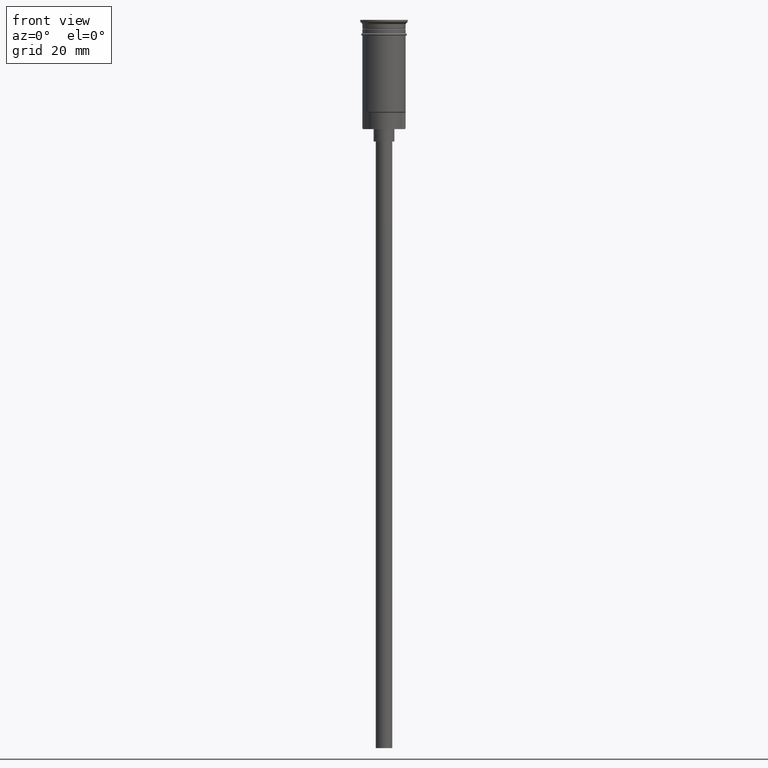
[diagram: clean part render]
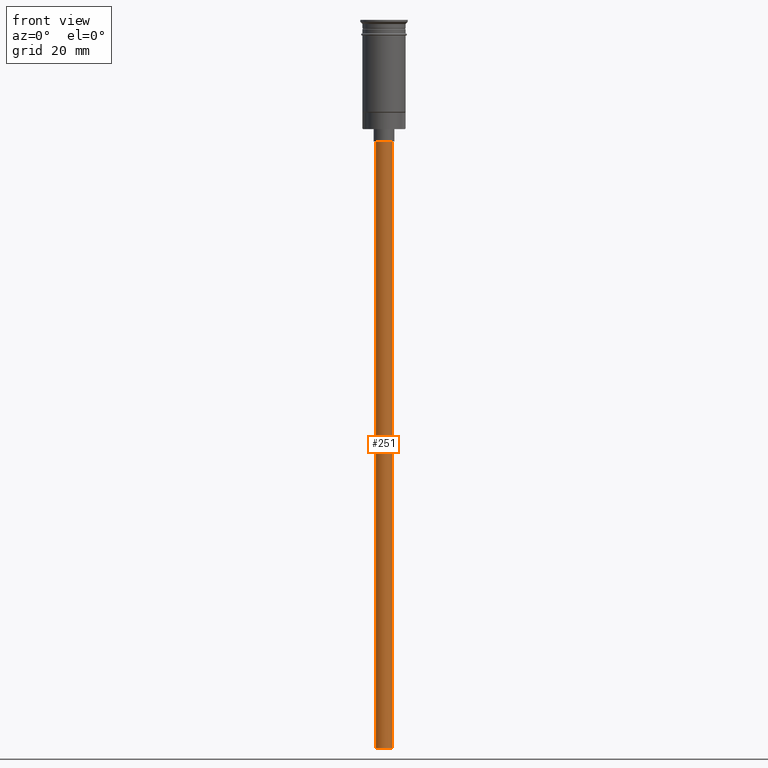
[diagram: same view with one face highlighted and labeled with its STEP entity id]
A machine part, front view. The second image highlights one B-rep face of the part: STEP entity #251.
In plain terms, the highlighted cylindrical surface (edge-blend (fillet) strip) has radius 2 mm, axis along (-0, -0, 1).
Its self-contained STEP definition (entity closure, byte-faithful):
#23 = CARTESIAN_POINT ( 'NONE',  ( 2.000000000000000000, 0.000000000000000000, -176.5000000000000000 ) ) ;
#46 = CIRCLE ( 'NONE', #449, 2.000000000000000000 ) ;
#64 = CYLINDRICAL_SURFACE ( 'NONE', #1569, 2.000000000000000000 ) ;
#84 = DIRECTION ( 'NONE',  ( -0.000000000000000000, -0.000000000000000000, 1.000000000000000000 ) ) ;
#134 = CARTESIAN_POINT ( 'NONE',  ( 2.000000000000000000, 0.000000000000000000, -29.50000000000000000 ) ) ;
#143 = DIRECTION ( 'NONE',  ( 0.000000000000000000, 0.000000000000000000, -1.000000000000000000 ) ) ;
#168 = CARTESIAN_POINT ( 'NONE',  ( -2.000000000000000000, 2.449293598294706414E-16, -176.5000000000000000 ) ) ;
#251 = ADVANCED_FACE ( 'NONE', ( #664 ), #64, .T. ) ;
#252 = EDGE_LOOP ( 'NONE', ( #545, #364, #356, #1072 ) ) ;
#257 = CIRCLE ( 'NONE', #1049, 2.000000000000000000 ) ;
#356 = ORIENTED_EDGE ( 'NONE', *, *, #755, .T. ) ;
#363 = DIRECTION ( 'NONE',  ( -0.000000000000000000, -0.000000000000000000, 1.000000000000000000 ) ) ;
#364 = ORIENTED_EDGE ( 'NONE', *, *, #1189, .F. ) ;
#449 = AXIS2_PLACEMENT_3D ( 'NONE', #972, #605, #1577 ) ;
#450 = EDGE_CURVE ( 'NONE', #1117, #1463, #1025, .T. ) ;
#480 = CARTESIAN_POINT ( 'NONE',  ( -2.000000000000000000, 2.449293598294706414E-16, -176.5000000000000000 ) ) ;
#529 = DIRECTION ( 'NONE',  ( -0.000000000000000000, -0.000000000000000000, 1.000000000000000000 ) ) ;
#545 = ORIENTED_EDGE ( 'NONE', *, *, #450, .F. ) ;
#605 = DIRECTION ( 'NONE',  ( 0.000000000000000000, 0.000000000000000000, -1.000000000000000000 ) ) ;
#618 = EDGE_CURVE ( 'NONE', #818, #1463, #46, .T. ) ;
#624 = VECTOR ( 'NONE', #529, 1000.000000000000000 ) ;
#664 = FACE_OUTER_BOUND ( 'NONE', #252, .T. ) ;
#745 = CARTESIAN_POINT ( 'NONE',  ( 2.000000000000000000, 0.000000000000000000, -176.5000000000000000 ) ) ;
#755 = EDGE_CURVE ( 'NONE', #1188, #818, #1489, .T. ) ;
#818 = VERTEX_POINT ( 'NONE', #134 ) ;
#972 = CARTESIAN_POINT ( 'NONE',  ( 0.000000000000000000, 0.000000000000000000, -29.50000000000000000 ) ) ;
#1000 = DIRECTION ( 'NONE',  ( -1.000000000000000000, 0.000000000000000000, 0.000000000000000000 ) ) ;
#1025 = LINE ( 'NONE', #168, #624 ) ;
#1049 = AXIS2_PLACEMENT_3D ( 'NONE', #1113, #143, #1000 ) ;
#1058 = DIRECTION ( 'NONE',  ( 1.000000000000000000, 0.000000000000000000, 0.000000000000000000 ) ) ;
#1072 = ORIENTED_EDGE ( 'NONE', *, *, #618, .T. ) ;
#1113 = CARTESIAN_POINT ( 'NONE',  ( 0.000000000000000000, 0.000000000000000000, -176.5000000000000000 ) ) ;
#1117 = VERTEX_POINT ( 'NONE', #480 ) ;
#1188 = VERTEX_POINT ( 'NONE', #745 ) ;
#1189 = EDGE_CURVE ( 'NONE', #1188, #1117, #257, .T. ) ;
#1192 = CARTESIAN_POINT ( 'NONE',  ( 0.000000000000000000, 0.000000000000000000, -176.5000000000000000 ) ) ;
#1213 = CARTESIAN_POINT ( 'NONE',  ( -2.000000000000000000, 2.449293598294706414E-16, -29.50000000000000000 ) ) ;
#1463 = VERTEX_POINT ( 'NONE', #1213 ) ;
#1489 = LINE ( 'NONE', #23, #1519 ) ;
#1519 = VECTOR ( 'NONE', #363, 1000.000000000000000 ) ;
#1569 = AXIS2_PLACEMENT_3D ( 'NONE', #1192, #84, #1058 ) ;
#1577 = DIRECTION ( 'NONE',  ( -1.000000000000000000, 0.000000000000000000, 0.000000000000000000 ) ) ;